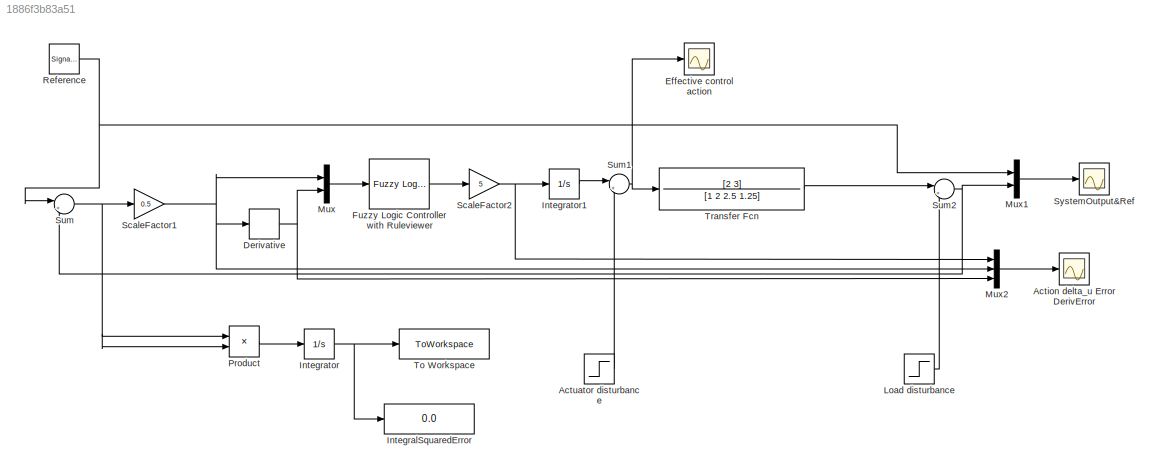
MODEL slx_1886f3b83a51
KIND model
CONFIG AbsTol = auto
CONFIG EnableMultiTasking = off
CONFIG FixedStep = auto
CONFIG MaxStep = auto
CONFIG MinStep = auto
CONFIG RelTol = 1e-3
CONFIG SampleTimeConstraint = Unconstrained
CONFIG SolverName = VariableStepAuto
CONFIG StartTime = 0.0
CONFIG StopTime = 250.0
BLOCK [Scope] Action delta_u Error DerivError
  Floating = off
  NumInputPorts = 1
  Ports = [1]
  ScopeSpecificationString = Simulink.scopes.TimeScopeBlockCfg('CurrentConfiguration', extmgr.ConfigurationSet(extmgr.Configuration('Core','General UI',true),extmgr.Configuration('Core','Source UI',true),extmgr.Configuration('Sources','WiredSimulink',true,'DataLoggingVariableName','ScopeData1'),extmgr.Configuration('Visuals','Time Domain',true,'SerializedDisplays',{struct('MinYLimReal','-7.24428','MaxYLimReal','7.1798','YLabe...<+1427ch>
BLOCK [Step] Actuator disturbance
  SampleTime = 0
  Time = 75
BLOCK [Derivative] Derivative 
BLOCK [Scope] Effective control action
  Floating = off
  NumInputPorts = 1
  Ports = [1]
  ScopeSpecificationString = Simulink.scopes.TimeScopeBlockCfg('CurrentConfiguration', extmgr.ConfigurationSet(extmgr.Configuration('Core','General UI',true),extmgr.Configuration('Core','Source UI',true),extmgr.Configuration('Sources','WiredSimulink',true,'DataLoggingVariableName','ScopeData2'),extmgr.Configuration('Visuals','Time Domain',true,'SerializedDisplays',{struct('MinYLimReal','-1.98606','MaxYLimReal','0.56311','YLab...<+1440ch>
BLOCK [Reference] Fuzzy Logic Controller with Ruleviewer  REF=fuzblock/Fuzzy Logic   (lib defined in mdl_858b3b3e7478)
Controller 
with Ruleviewer
  Ports = [1, 1]
  SourceBlock = fuzblock/Fuzzy Logic \nController \nwith Ruleviewer
  SourceProductBaseCode = FL
  SourceType = Fuzzy Inference System
BLOCK [Display] IntegralSquaredError
  Decimation = 1
  Ports = [1]
BLOCK [Integrator] Integrator
  Ports = [1, 1]
BLOCK [Integrator] Integrator1
  Ports = [1, 1]
BLOCK [Step] Load disturbance
  SampleTime = 0
  Time = 150
BLOCK [Mux] Mux
  DisplayOption = bar
  Inputs = 2
  Ports = [2, 1]
BLOCK [Mux] Mux1
  DisplayOption = bar
  Inputs = 2
  Ports = [2, 1]
BLOCK [Mux] Mux2
  DisplayOption = bar
  Inputs = 3
  Ports = [3, 1]
BLOCK [Product] Product
  Ports = [2, 1]
BLOCK [SignalGenerator] Reference
  Frequency = 0.05
  Ports = [0, 1]
  Units = rad/sec
  WaveForm = square
BLOCK [Gain] ScaleFactor1
  Gain = 0.5
BLOCK [Gain] ScaleFactor2
  Gain = 5
BLOCK [Sum] Sum
  Inputs = |+-
  Ports = [2, 1]
BLOCK [Sum] Sum1
  Inputs = |+-
  Ports = [2, 1]
BLOCK [Sum] Sum2
  Inputs = |+-
  Ports = [2, 1]
BLOCK [Scope] SystemOutput&Ref
  Floating = off
  NumInputPorts = 1
  Ports = [1]
  ScopeSpecificationString = Simulink.scopes.TimeScopeBlockCfg('CurrentConfiguration', extmgr.ConfigurationSet(extmgr.Configuration('Core','General UI',true),extmgr.Configuration('Core','Source UI',true),extmgr.Configuration('Sources','WiredSimulink',true),extmgr.Configuration('Visuals','Time Domain',true,'SerializedDisplays',{struct('MinYLimReal','-1.93746','MaxYLimReal','2.18501','YLabelReal','','MinYLimMag','0.00000','MaxY...<+1437ch>
BLOCK [ToWorkspace] To Workspace
  FixptAsFi = on
  MaxDataPoints = inf
  Ports = [1]
  SampleTime = -1
  SaveFormat = Timeseries
  VariableName = Performance
BLOCK [TransferFcn] Transfer Fcn
  Denominator = [1 2 2.5 1.25]
  Numerator = [2 3]
LINE Actuator disturbance:1 -> Sum1:2
NET Derivative :1 -> Mux2:3, Mux:2
LINE Fuzzy Logic Controller with Ruleviewer:1 -> ScaleFactor2:1
LINE Integrator1:1 -> Sum1:1
NET Integrator:1 -> IntegralSquaredError:1, To Workspace:1
LINE Load disturbance:1 -> Sum2:2
LINE Mux1:1 -> SystemOutput&Ref:1
LINE Mux2:1 -> Action delta_u Error DerivError:1
LINE Mux:1 -> Fuzzy Logic Controller with Ruleviewer:1
LINE Product:1 -> Integrator:1
NET Reference:1 -> Mux1:1, Sum:1
NET ScaleFactor1:1 -> Derivative :1, Mux2:2, Mux:1
NET ScaleFactor2:1 -> Integrator1:1, Mux2:1
NET Sum1:1 -> Effective control action:1, Transfer Fcn:1
NET Sum2:1 -> Mux1:2, Sum:2
NET Sum:1 -> Product:1, Product:2, ScaleFactor1:1
LINE Transfer Fcn:1 -> Sum2:1
note: NET lines group one-source signal fan-out (src -> all destinations, sorted); 1:1 wires keep LINE
